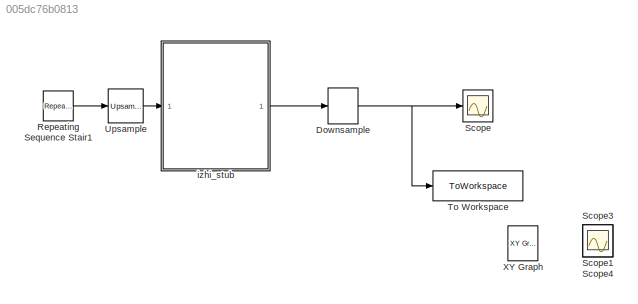
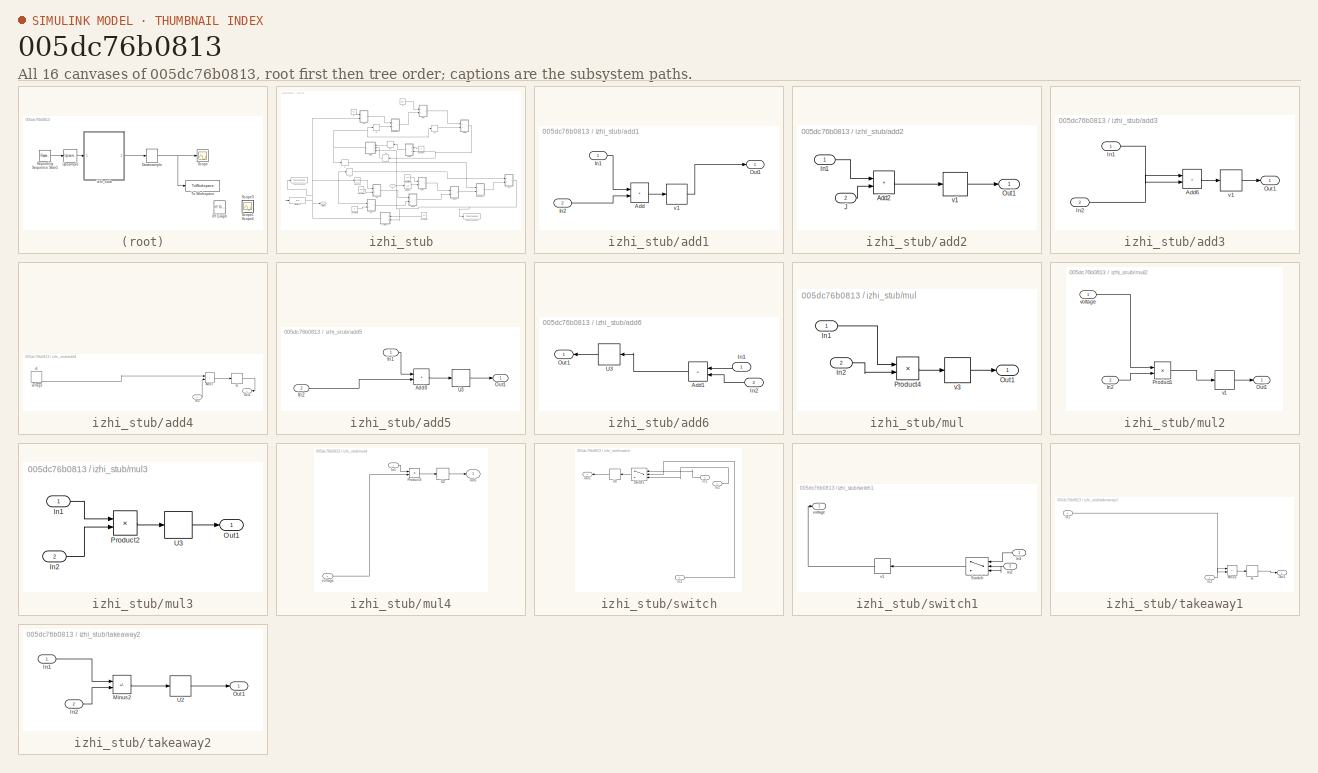
[diagram: thumbnail index - all 16 canvases of the model, root first then tree order]
MODEL slx_005dc76b0813
KIND model
CONFIG AbsTol = auto
CONFIG EnableMultiTasking = off
CONFIG FixedStep = 0.001
CONFIG MaxStep = auto
CONFIG MinStep = auto
CONFIG RelTol = 1e-3
CONFIG SampleTimeConstraint = Unconstrained
CONFIG SolverName = VariableStepAuto
CONFIG StartTime = 0.0
CONFIG StopTime = 5000
BLOCK [DownSample] Downsample
  InputProcessing = Elements as channels (sample based)
  N = 10
  RateOptions = Allow multirate processing
BLOCK [Reference] Repeating Sequence Stair1  REF=simulink/Sources/Repeating
Sequence
Stair
  Ports = [0, 1]
  SourceBlock = simulink/Sources/Repeating\nSequence\nStair
  SourceProductBaseCode = SL
  SourceType = Repeating Sequence Stair
BLOCK [Scope] Scope
  Floating = off
  NumInputPorts = 1
  Ports = [1]
  ScopeSpecificationString = Simulink.scopes.TimeScopeBlockCfg('CurrentConfiguration', extmgr.ConfigurationSet(extmgr.Configuration('Core','General UI',true),extmgr.Configuration('Core','Source UI',true),extmgr.Configuration('Sources','WiredSimulink',true,'DataLoggingVariableName','ScopeData1'),extmgr.Configuration('Visuals','Time Domain',true,'SerializedDisplays',{struct('MinYLimReal','-91.15138','MaxYLimReal','42.5186','YLa...<+1425ch>
BLOCK [Scope] Scope1
  Floating = off
  IOType = viewer
  NumInputPorts = 1
  Ports = []
  ScopeSpecificationString = Simulink.scopes.TimeScopeBlockCfg('CurrentConfiguration', extmgr.ConfigurationSet(extmgr.Configuration('Core','General UI',true),extmgr.Configuration('Core','Source UI',true),extmgr.Configuration('Sources','WiredSimulink',true,'DataLoggingVariableName','ScopeData1'),extmgr.Configuration('Visuals','Time Domain',true,'SerializedDisplays',{struct('MinYLimReal','-0.24987','MaxYLimReal','2.24887','YLab...<+1435ch>
BLOCK [Scope] Scope3
  Floating = off
  IOType = viewer
  NumInputPorts = 1
  Ports = []
  ScopeSpecificationString = Simulink.scopes.TimeScopeBlockCfg('CurrentConfiguration', extmgr.ConfigurationSet(extmgr.Configuration('Core','General UI',true),extmgr.Configuration('Core','Source UI',true),extmgr.Configuration('Sources','WiredSimulink',true,'DataLoggingVariableName','ScopeData3'),extmgr.Configuration('Visuals','Time Domain',true,'SerializedDisplays',{struct('MinYLimReal','-103.72127','MaxYLimReal','38.33358','Y...<+1371ch>
BLOCK [Scope] Scope4
  Floating = off
  IOType = viewer
  NumInputPorts = 1
  Ports = []
  ScopeSpecificationString = Simulink.scopes.TimeScopeBlockCfg('CurrentConfiguration', extmgr.ConfigurationSet(extmgr.Configuration('Core','General UI',true),extmgr.Configuration('Core','Source UI',true),extmgr.Configuration('Sources','WiredSimulink',true,'DataLoggingVariableName','ScopeData4'),extmgr.Configuration('Visuals','Time Domain',true,'SerializedDisplays',{struct('MinYLimReal','-20.75486','MaxYLimReal','56.79378','YL...<+1365ch>
BLOCK [ToWorkspace] To Workspace
  FixptAsFi = on
  MaxDataPoints = inf
  Ports = [1]
  SampleTime = -1
  SaveFormat = Timeseries
  VariableName = finaValue
BLOCK [Reference] Upsample  REF=dspsigops/Upsample
  Ports = [1, 1]
  SourceBlock = dspsigops/Upsample
  SourceProductName = DSP System Toolbox
  SourceType = Upsample
  UserDataPersistent = on
BLOCK [Reference] XY Graph  REF=simulink/Sinks/XY Graph
  IOType = viewer
  Ports = [2]
  SourceBlock = simulink/Sinks/XY Graph
  SourceProductBaseCode = SL
  SourceType = XY scope.
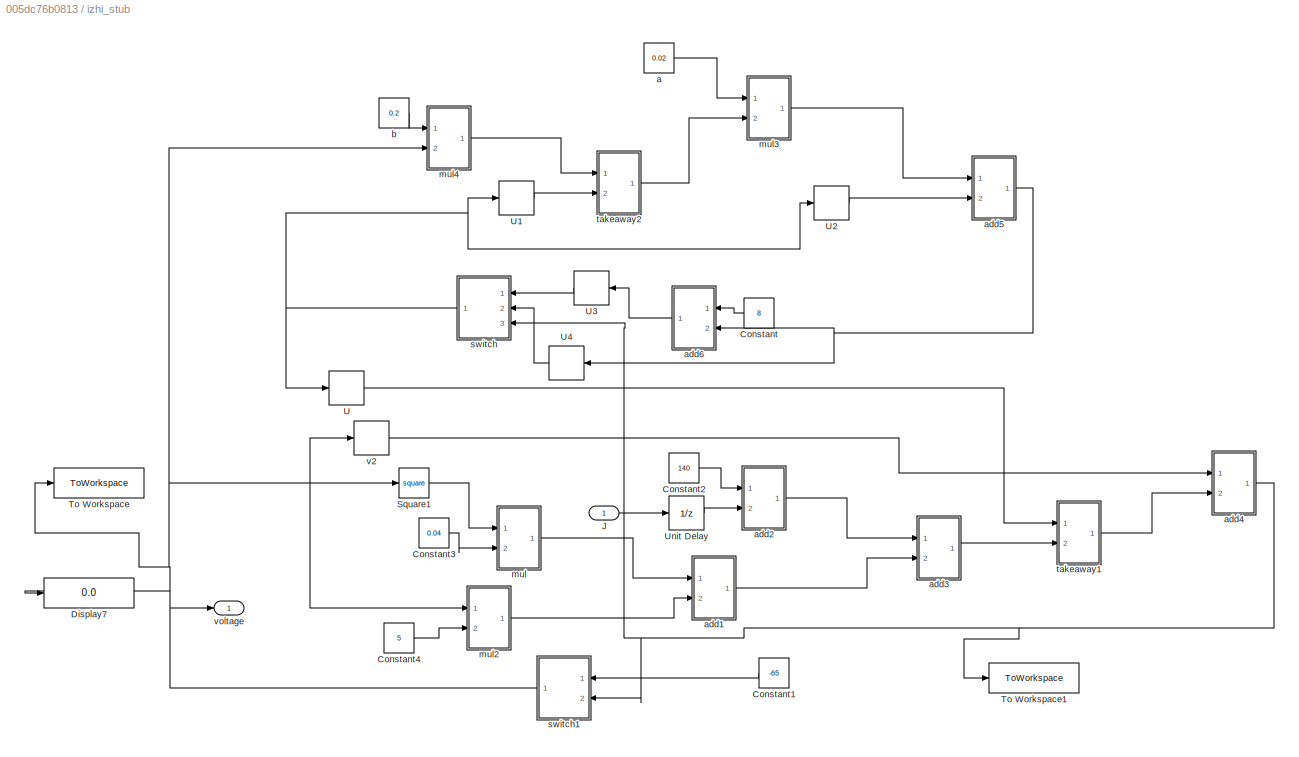
BLOCK [SubSystem] izhi_stub
  Ports = [1, 1]
  RequestExecContextInheritance = off
BLOCK [Constant] izhi_stub/Constant
  Value = 8
BLOCK [Constant] izhi_stub/Constant1
  Value = -65
BLOCK [Constant] izhi_stub/Constant2
  Value = 140
BLOCK [Constant] izhi_stub/Constant3
  Value = 0.04
BLOCK [Constant] izhi_stub/Constant4
  Value = 5
BLOCK [Display] izhi_stub/Display7
  Decimation = 1
  Ports = [1]
BLOCK [Inport] izhi_stub/J
BLOCK [Math] izhi_stub/Square1
  Operator = square
  Ports = [1, 1]
BLOCK [ToWorkspace] izhi_stub/To Workspace
  FixptAsFi = on
  MaxDataPoints = inf
  Ports = [1]
  SampleTime = -1
  SaveFormat = Timeseries
  VariableName = vend
BLOCK [ToWorkspace] izhi_stub/To Workspace1
  FixptAsFi = on
  MaxDataPoints = inf
  Ports = [1]
  SampleTime = -1
  SaveFormat = Timeseries
  VariableName = vend1
BLOCK [Delay] izhi_stub/U
  DelayLength = 5
  InitialCondition = -65
  InputPortMap = u0
  Ports = [1, 1]
BLOCK [Delay] izhi_stub/U1
  DelayLength = 1
  InitialCondition = 0
  InputPortMap = u0
  Ports = [1, 1]
BLOCK [Delay] izhi_stub/U2
  DelayLength = 4
  InitialCondition = 0
  InputPortMap = u0
  Ports = [1, 1]
BLOCK [Delay] izhi_stub/U3
  DelayLength = 1
  InitialCondition = 0
  InputPortMap = u0
  Ports = [1, 1]
BLOCK [Delay] izhi_stub/U4
  DelayLength = 3
  InitialCondition = 0
  InputPortMap = u0
  Ports = [1, 1]
BLOCK [UnitDelay] izhi_stub/Unit Delay
  HasFrameUpgradeWarning = on
  InitialCondition = -65
  SampleTime = -1
BLOCK [Constant] izhi_stub/a
  Value = 0.02
BLOCK [SubSystem] izhi_stub/add1
  Ports = [2, 1]
  RequestExecContextInheritance = off
BLOCK [Sum] izhi_stub/add1/Add
  IconShape = rectangular
  Ports = [2, 1]
BLOCK [Inport] izhi_stub/add1/In1
BLOCK [Inport] izhi_stub/add1/In2
  Port = 2
BLOCK [Outport] izhi_stub/add1/Out1
BLOCK [Delay] izhi_stub/add1/v1
  InitialCondition = -65
  InputPortMap = u0
  NameLocation = top
  Ports = [1, 1]
BLOCK [SubSystem] izhi_stub/add2
  Ports = [2, 1]
  RequestExecContextInheritance = off
BLOCK [Sum] izhi_stub/add2/Add2
  IconShape = rectangular
  Ports = [2, 1]
BLOCK [Inport] izhi_stub/add2/In1
BLOCK [Inport] izhi_stub/add2/J
  Port = 2
BLOCK [Outport] izhi_stub/add2/Out1
BLOCK [Delay] izhi_stub/add2/v1
  InitialCondition = -65
  InputPortMap = u0
  NameLocation = top
  Ports = [1, 1]
BLOCK [SubSystem] izhi_stub/add3
  Ports = [2, 1]
  RequestExecContextInheritance = off
BLOCK [Sum] izhi_stub/add3/Add6
  IconShape = rectangular
  Ports = [2, 1]
BLOCK [Inport] izhi_stub/add3/In1
BLOCK [Inport] izhi_stub/add3/In2
  Port = 2
BLOCK [Outport] izhi_stub/add3/Out1
BLOCK [Delay] izhi_stub/add3/v1
  InitialCondition = -65
  InputPortMap = u0
  NameLocation = top
  Ports = [1, 1]
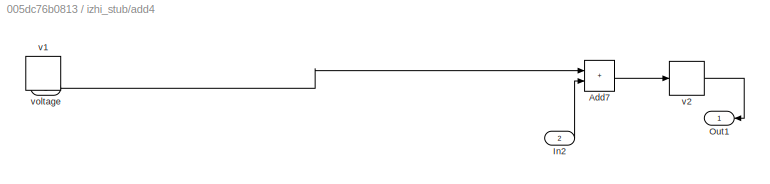
BLOCK [SubSystem] izhi_stub/add4
  Ports = [2, 1]
  RequestExecContextInheritance = off
BLOCK [Sum] izhi_stub/add4/Add7
  IconShape = rectangular
  Ports = [2, 1]
BLOCK [Inport] izhi_stub/add4/In2
  Port = 2
BLOCK [Outport] izhi_stub/add4/Out1
BLOCK [Delay] izhi_stub/add4/v1
  DelayLength = 3
  InitialCondition = 0
  InputPortMap = u0
  NameLocation = top
  Ports = [1, 1]
BLOCK [Delay] izhi_stub/add4/v2
  InitialCondition = -65
  InputPortMap = u0
  NameLocation = top
  Ports = [1, 1]
BLOCK [Inport] izhi_stub/add4/voltage
BLOCK [SubSystem] izhi_stub/add5
  Ports = [2, 1]
  RequestExecContextInheritance = off
BLOCK [Sum] izhi_stub/add5/Add8
  IconShape = rectangular
  Ports = [2, 1]
BLOCK [Inport] izhi_stub/add5/In1
BLOCK [Inport] izhi_stub/add5/In2
  Port = 2
BLOCK [Outport] izhi_stub/add5/Out1
BLOCK [Delay] izhi_stub/add5/U3
  InitialCondition = 0
  InputPortMap = u0
  Ports = [1, 1]
BLOCK [SubSystem] izhi_stub/add6
  Ports = [2, 1]
  RequestExecContextInheritance = off
BLOCK [Sum] izhi_stub/add6/Add1
  IconShape = rectangular
  Ports = [2, 1]
BLOCK [Inport] izhi_stub/add6/In1
BLOCK [Inport] izhi_stub/add6/In2
  Port = 2
BLOCK [Outport] izhi_stub/add6/Out1
BLOCK [Delay] izhi_stub/add6/U3
  InitialCondition = 0
  InputPortMap = u0
  Ports = [1, 1]
BLOCK [Constant] izhi_stub/b
  Value = 0.2
BLOCK [SubSystem] izhi_stub/mul
  Ports = [2, 1]
  RequestExecContextInheritance = off
BLOCK [Inport] izhi_stub/mul/In1
BLOCK [Inport] izhi_stub/mul/In2
  Port = 2
BLOCK [Outport] izhi_stub/mul/Out1
BLOCK [Product] izhi_stub/mul/Product4
  Ports = [2, 1]
BLOCK [Delay] izhi_stub/mul/v3
  DelayLength = 1
  InitialCondition = -65
  InputPortMap = u0
  NameLocation = top
  Ports = [1, 1]
BLOCK [SubSystem] izhi_stub/mul2
  Ports = [2, 1]
  RequestExecContextInheritance = off
BLOCK [Inport] izhi_stub/mul2/In2
  Port = 2
BLOCK [Outport] izhi_stub/mul2/Out1
BLOCK [Product] izhi_stub/mul2/Product1
  Ports = [2, 1]
BLOCK [Delay] izhi_stub/mul2/v1
  DelayLength = 1
  InitialCondition = -65
  InputPortMap = u0
  NameLocation = top
  Ports = [1, 1]
BLOCK [Inport] izhi_stub/mul2/voltage
BLOCK [SubSystem] izhi_stub/mul3
  Ports = [2, 1]
  RequestExecContextInheritance = off
BLOCK [Inport] izhi_stub/mul3/In1
BLOCK [Inport] izhi_stub/mul3/In2
  Port = 2
BLOCK [Outport] izhi_stub/mul3/Out1
BLOCK [Product] izhi_stub/mul3/Product2
  Ports = [2, 1]
BLOCK [Delay] izhi_stub/mul3/U3
  DelayLength = 1
  InitialCondition = 0
  InputPortMap = u0
  Ports = [1, 1]
BLOCK [SubSystem] izhi_stub/mul4
  Ports = [2, 1]
  RequestExecContextInheritance = off
BLOCK [Inport] izhi_stub/mul4/In1
BLOCK [Outport] izhi_stub/mul4/Out1
BLOCK [Product] izhi_stub/mul4/Product3
  Ports = [2, 1]
BLOCK [Delay] izhi_stub/mul4/U2
  DelayLength = 1
  InitialCondition = 0
  InputPortMap = u0
  Ports = [1, 1]
BLOCK [Inport] izhi_stub/mul4/voltage
  Port = 2
BLOCK [SubSystem] izhi_stub/switch
  Ports = [3, 1]
  RequestExecContextInheritance = off
BLOCK [Inport] izhi_stub/switch/In1
BLOCK [Inport] izhi_stub/switch/In2
  Port = 2
BLOCK [Inport] izhi_stub/switch/In3
  Port = 3
BLOCK [Outport] izhi_stub/switch/Out1
BLOCK [Switch] izhi_stub/switch/Switch1
  Criteria = u2 > Threshold
  InputSameDT = off
  NameLocation = top
  SaturateOnIntegerOverflow = off
  Threshold = 30
BLOCK [Delay] izhi_stub/switch/U4
  DelayLength = 1
  InitialCondition = 0
  InputPortMap = u0
  Ports = [1, 1]
BLOCK [SubSystem] izhi_stub/switch1
  Ports = [2, 1]
  RequestExecContextInheritance = off
BLOCK [Inport] izhi_stub/switch1/In1
BLOCK [Inport] izhi_stub/switch1/In2
  Port = 2
BLOCK [Switch] izhi_stub/switch1/Switch
  Criteria = u2 > Threshold
  InputSameDT = off
  SaturateOnIntegerOverflow = off
  Threshold = 30
BLOCK [Delay] izhi_stub/switch1/v1
  DelayLength = 1
  InitialCondition = -65
  InputPortMap = u0
  Ports = [1, 1]
BLOCK [Outport] izhi_stub/switch1/voltage
BLOCK [SubSystem] izhi_stub/takeaway1
  Ports = [2, 1]
  RequestExecContextInheritance = off
BLOCK [Inport] izhi_stub/takeaway1/In1
BLOCK [Inport] izhi_stub/takeaway1/In2
  Port = 2
BLOCK [Sum] izhi_stub/takeaway1/Minus
  IconShape = rectangular
  Inputs = +-
  Ports = [2, 1]
BLOCK [Outport] izhi_stub/takeaway1/Out1
BLOCK [Delay] izhi_stub/takeaway1/v1
  InitialCondition = -65
  InputPortMap = u0
  NameLocation = top
  Ports = [1, 1]
BLOCK [SubSystem] izhi_stub/takeaway2
  Ports = [2, 1]
  RequestExecContextInheritance = off
BLOCK [Inport] izhi_stub/takeaway2/In1
BLOCK [Inport] izhi_stub/takeaway2/In2
  Port = 2
BLOCK [Sum] izhi_stub/takeaway2/Minus2
  IconShape = rectangular
  Inputs = +-
  Ports = [2, 1]
BLOCK [Outport] izhi_stub/takeaway2/Out1
BLOCK [Delay] izhi_stub/takeaway2/U2
  InitialCondition = 0
  InputPortMap = u0
  Ports = [1, 1]
BLOCK [Delay] izhi_stub/v2
  DelayLength = 7
  InitialCondition = -65
  InputPortMap = u0
  NameLocation = top
  Ports = [1, 1]
BLOCK [Outport] izhi_stub/voltage
  NameLocation = top
  VectorParamsAs1DForOutWhenUnconnected = off
NET Downsample:1 -> Scope:1, To Workspace:1
LINE Repeating Sequence Stair1:1 -> Upsample:1
LINE Upsample:1 -> izhi_stub:1
LINE izhi_stub/Constant1:1 -> izhi_stub/switch1:1
LINE izhi_stub/Constant2:1 -> izhi_stub/add2:1
LINE izhi_stub/Constant3:1 -> izhi_stub/mul:2
LINE izhi_stub/Constant4:1 -> izhi_stub/mul2:2
LINE izhi_stub/Constant:1 -> izhi_stub/add6:1
LINE izhi_stub/J:1 -> izhi_stub/Unit Delay:1
LINE izhi_stub/Square1:1 -> izhi_stub/mul:1
LINE izhi_stub/U1:1 -> izhi_stub/takeaway2:2
LINE izhi_stub/U2:1 -> izhi_stub/add5:2
LINE izhi_stub/U3:1 -> izhi_stub/switch:1
LINE izhi_stub/U4:1 -> izhi_stub/switch:2
LINE izhi_stub/U:1 -> izhi_stub/takeaway1:1
LINE izhi_stub/Unit Delay:1 -> izhi_stub/add2:2
LINE izhi_stub/a:1 -> izhi_stub/mul3:1
LINE izhi_stub/add1/Add:1 -> izhi_stub/add1/v1:1
LINE izhi_stub/add1/In1:1 -> izhi_stub/add1/Add:1
LINE izhi_stub/add1/In2:1 -> izhi_stub/add1/Add:2
LINE izhi_stub/add1/v1:1 -> izhi_stub/add1/Out1:1
LINE izhi_stub/add1:1 -> izhi_stub/add3:2
LINE izhi_stub/add2/Add2:1 -> izhi_stub/add2/v1:1
LINE izhi_stub/add2/In1:1 -> izhi_stub/add2/Add2:1
LINE izhi_stub/add2/J:1 -> izhi_stub/add2/Add2:2
LINE izhi_stub/add2/v1:1 -> izhi_stub/add2/Out1:1
LINE izhi_stub/add2:1 -> izhi_stub/add3:1
LINE izhi_stub/add3/Add6:1 -> izhi_stub/add3/v1:1
LINE izhi_stub/add3/In1:1 -> izhi_stub/add3/Add6:2
LINE izhi_stub/add3/In2:1 -> izhi_stub/add3/Add6:1
LINE izhi_stub/add3/v1:1 -> izhi_stub/add3/Out1:1
LINE izhi_stub/add3:1 -> izhi_stub/takeaway1:2
LINE izhi_stub/add4/Add7:1 -> izhi_stub/add4/v2:1
LINE izhi_stub/add4/In2:1 -> izhi_stub/add4/Add7:2
LINE izhi_stub/add4/v2:1 -> izhi_stub/add4/Out1:1
LINE izhi_stub/add4/voltage:1 -> izhi_stub/add4/Add7:1
NET izhi_stub/add4:1 -> izhi_stub/To Workspace1:1, izhi_stub/switch1:2, izhi_stub/switch:3
LINE izhi_stub/add5/Add8:1 -> izhi_stub/add5/U3:1
LINE izhi_stub/add5/In1:1 -> izhi_stub/add5/Add8:1
LINE izhi_stub/add5/In2:1 -> izhi_stub/add5/Add8:2
LINE izhi_stub/add5/U3:1 -> izhi_stub/add5/Out1:1
NET izhi_stub/add5:1 -> izhi_stub/U4:1, izhi_stub/add6:2
LINE izhi_stub/add6/Add1:1 -> izhi_stub/add6/U3:1
LINE izhi_stub/add6/In1:1 -> izhi_stub/add6/Add1:1
LINE izhi_stub/add6/In2:1 -> izhi_stub/add6/Add1:2
LINE izhi_stub/add6/U3:1 -> izhi_stub/add6/Out1:1
LINE izhi_stub/add6:1 -> izhi_stub/U3:1
LINE izhi_stub/b:1 -> izhi_stub/mul4:1
LINE izhi_stub/mul/In1:1 -> izhi_stub/mul/Product4:1
LINE izhi_stub/mul/In2:1 -> izhi_stub/mul/Product4:2
LINE izhi_stub/mul/Product4:1 -> izhi_stub/mul/v3:1
LINE izhi_stub/mul/v3:1 -> izhi_stub/mul/Out1:1
LINE izhi_stub/mul2/In2:1 -> izhi_stub/mul2/Product1:2
LINE izhi_stub/mul2/Product1:1 -> izhi_stub/mul2/v1:1
LINE izhi_stub/mul2/v1:1 -> izhi_stub/mul2/Out1:1
LINE izhi_stub/mul2/voltage:1 -> izhi_stub/mul2/Product1:1
LINE izhi_stub/mul2:1 -> izhi_stub/add1:2
LINE izhi_stub/mul3/In1:1 -> izhi_stub/mul3/Product2:1
LINE izhi_stub/mul3/In2:1 -> izhi_stub/mul3/Product2:2
LINE izhi_stub/mul3/Product2:1 -> izhi_stub/mul3/U3:1
LINE izhi_stub/mul3/U3:1 -> izhi_stub/mul3/Out1:1
LINE izhi_stub/mul3:1 -> izhi_stub/add5:1
LINE izhi_stub/mul4/In1:1 -> izhi_stub/mul4/Product3:1
LINE izhi_stub/mul4/Product3:1 -> izhi_stub/mul4/U2:1
LINE izhi_stub/mul4/U2:1 -> izhi_stub/mul4/Out1:1
LINE izhi_stub/mul4/voltage:1 -> izhi_stub/mul4/Product3:2
LINE izhi_stub/mul4:1 -> izhi_stub/takeaway2:1
LINE izhi_stub/mul:1 -> izhi_stub/add1:1
LINE izhi_stub/switch/In1:1 -> izhi_stub/switch/Switch1:1
LINE izhi_stub/switch/In2:1 -> izhi_stub/switch/Switch1:3
LINE izhi_stub/switch/In3:1 -> izhi_stub/switch/Switch1:2
LINE izhi_stub/switch/Switch1:1 -> izhi_stub/switch/U4:1
LINE izhi_stub/switch/U4:1 -> izhi_stub/switch/Out1:1
LINE izhi_stub/switch1/In1:1 -> izhi_stub/switch1/Switch:1
NET izhi_stub/switch1/In2:1 -> izhi_stub/switch1/Switch:2, izhi_stub/switch1/Switch:3
LINE izhi_stub/switch1/Switch:1 -> izhi_stub/switch1/v1:1
LINE izhi_stub/switch1/v1:1 -> izhi_stub/switch1/voltage:1
NET izhi_stub/switch1:1 -> izhi_stub/Display7:1, izhi_stub/Square1:1, izhi_stub/To Workspace:1, izhi_stub/mul2:1, izhi_stub/mul4:2, izhi_stub/v2:1, izhi_stub/voltage:1
NET izhi_stub/switch:1 -> izhi_stub/U1:1, izhi_stub/U2:1, izhi_stub/U:1
LINE izhi_stub/takeaway1/In1:1 -> izhi_stub/takeaway1/Minus:2
LINE izhi_stub/takeaway1/In2:1 -> izhi_stub/takeaway1/Minus:1
LINE izhi_stub/takeaway1/Minus:1 -> izhi_stub/takeaway1/v1:1
LINE izhi_stub/takeaway1/v1:1 -> izhi_stub/takeaway1/Out1:1
LINE izhi_stub/takeaway1:1 -> izhi_stub/add4:2
LINE izhi_stub/takeaway2/In1:1 -> izhi_stub/takeaway2/Minus2:1
LINE izhi_stub/takeaway2/In2:1 -> izhi_stub/takeaway2/Minus2:2
LINE izhi_stub/takeaway2/Minus2:1 -> izhi_stub/takeaway2/U2:1
LINE izhi_stub/takeaway2/U2:1 -> izhi_stub/takeaway2/Out1:1
LINE izhi_stub/takeaway2:1 -> izhi_stub/mul3:2
LINE izhi_stub/v2:1 -> izhi_stub/add4:1
LINE izhi_stub:1 -> Downsample:1
note: NET lines group one-source signal fan-out (src -> all destinations, sorted); 1:1 wires keep LINE
